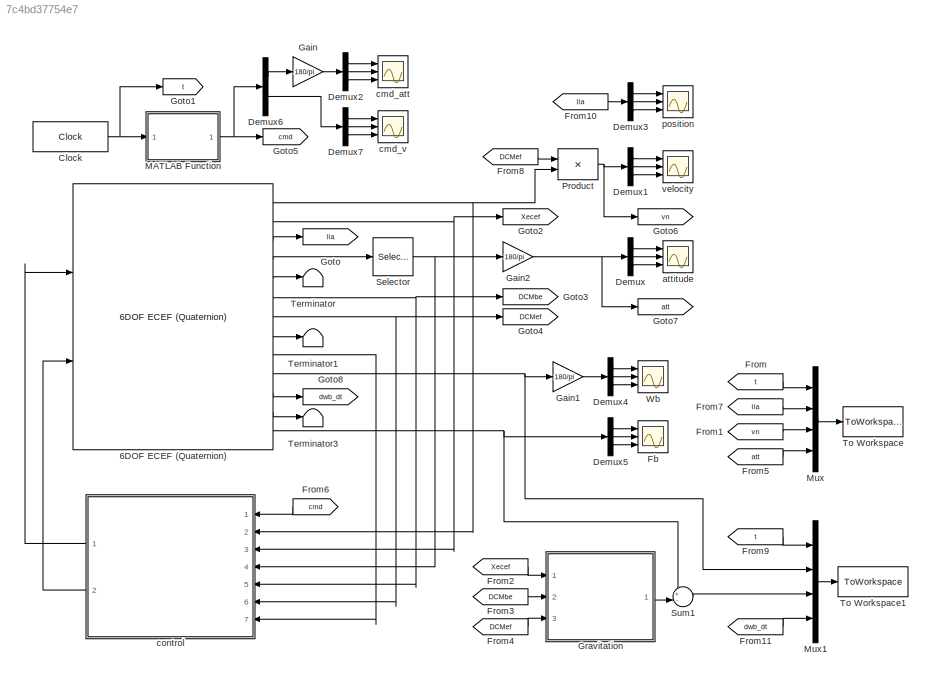
MODEL slx_7c4bd37754e7
KIND model
CONFIG AbsTol = auto
CONFIG EnableMultiTasking = off
CONFIG FixedStep = dt_solve
CONFIG InitFcn = traj_init_normal;
CONFIG MaxStep = auto
CONFIG MinStep = auto
CONFIG RelTol = 1e-3
CONFIG SampleTimeConstraint = Unconstrained
CONFIG Solver = ode4
CONFIG SolverName = ode4
CONFIG StartTime = 0.0
CONFIG StopTime = T
BLOCK [Reference] 6DOF ECEF (Quaternion)  REF=aerolib6dof2/6DOF ECEF (Quaternion)
  Ports = [2, 13]
  SourceBlock = aerolib6dof2/6DOF ECEF (Quaternion)
  SourceProductBaseCode = AE
  SourceProductName = Aerospace Blockset
  SourceType = 6DOF EoM (ECEF)
BLOCK [Clock] Clock
  Decimation = 1
  DisplayTime = on
BLOCK [Demux] Demux
  DisplayOption = bar
  Outputs = 3
  Ports = [1, 3]
BLOCK [Demux] Demux1
  DisplayOption = bar
  Outputs = 3
  Ports = [1, 3]
BLOCK [Demux] Demux2
  DisplayOption = bar
  Outputs = 3
  Ports = [1, 3]
BLOCK [Demux] Demux3
  DisplayOption = bar
  Outputs = 3
  Ports = [1, 3]
BLOCK [Demux] Demux4
  DisplayOption = bar
  Outputs = 3
  Ports = [1, 3]
BLOCK [Demux] Demux5
  DisplayOption = bar
  Outputs = 3
  Ports = [1, 3]
BLOCK [Demux] Demux6
  DisplayOption = bar
  Outputs = [3 3]
  Ports = [1, 2]
BLOCK [Demux] Demux7
  DisplayOption = bar
  Outputs = 3
  Ports = [1, 3]
BLOCK [Scope] Fb
  Floating = off
  NumInputPorts = 3
  Ports = [3]
  ScopeSpecificationString = Simulink.scopes.TimeScopeBlockCfg('CurrentConfiguration', extmgr.ConfigurationSet(extmgr.Configuration('Core','General UI',true),extmgr.Configuration('Core','Source UI',true),extmgr.Configuration('Sources','WiredSimulink',true,'DataLoggingVariableName','ScopeData2','SampleTime','dt_scope'),extmgr.Configuration('Visuals','Time Domain',true,'SerializedDisplays',{struct('MinYLimReal','0.0047','MaxYLi...<+2749ch>
BLOCK [From] From
  GotoTag = t
BLOCK [From] From1
  GotoTag = vn
BLOCK [From] From10
  GotoTag = lla
BLOCK [From] From11
  GotoTag = dwb_dt
BLOCK [From] From2
  GotoTag = Xecef
BLOCK [From] From3
  GotoTag = DCMbe
BLOCK [From] From4
  GotoTag = DCMef
BLOCK [From] From5
  GotoTag = att
BLOCK [From] From6
  GotoTag = cmd
BLOCK [From] From7
  GotoTag = lla
BLOCK [From] From8
  GotoTag = DCMef
BLOCK [From] From9
  GotoTag = t
BLOCK [Gain] Gain
  Gain = 180/pi
  OutDataTypeStr = Inherit: Inherit via internal rule
  ParamDataTypeStr = Inherit: Inherit via internal rule
  SaturateOnIntegerOverflow = off
BLOCK [Gain] Gain1
  Gain = 180/pi
  OutDataTypeStr = Inherit: Inherit via internal rule
  ParamDataTypeStr = Inherit: Inherit via internal rule
  SaturateOnIntegerOverflow = off
BLOCK [Gain] Gain2
  Gain = 180/pi
  OutDataTypeStr = Inherit: Inherit via internal rule
  ParamDataTypeStr = Inherit: Inherit via internal rule
  SaturateOnIntegerOverflow = off
BLOCK [Goto] Goto
  GotoTag = lla
BLOCK [Goto] Goto1
  GotoTag = t
BLOCK [Goto] Goto2
  GotoTag = Xecef
BLOCK [Goto] Goto3
  GotoTag = DCMbe
BLOCK [Goto] Goto4
  GotoTag = DCMef
BLOCK [Goto] Goto5
  GotoTag = cmd
BLOCK [Goto] Goto6
  GotoTag = vn
BLOCK [Goto] Goto7
  GotoTag = att
BLOCK [Goto] Goto8
  GotoTag = dwb_dt
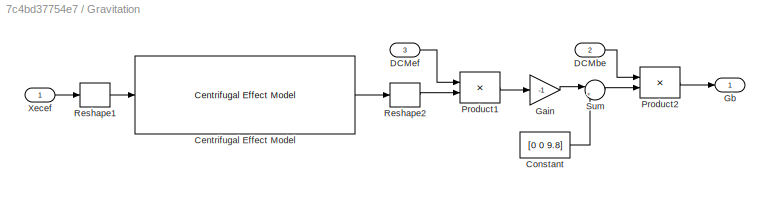
BLOCK [SubSystem] Gravitation
  Ports = [3, 1]
  RequestExecContextInheritance = off
BLOCK [Reference] Gravitation/Centrifugal Effect Model  REF=aerolibgravity2/Centrifugal Effect Model
  Ports = [1, 1]
  SourceBlock = aerolibgravity2/Centrifugal Effect Model
  SourceProductBaseCode = AE
  SourceProductName = Aerospace Blockset
  SourceType = Centrifugal Effect Model
BLOCK [Constant] Gravitation/Constant
  Value = [0 0 9.8]
BLOCK [Inport] Gravitation/DCMbe
  IconDisplay = Port number
  Port = 2
BLOCK [Inport] Gravitation/DCMef
  IconDisplay = Port number
  Port = 3
BLOCK [Gain] Gravitation/Gain
  Gain = -1
  OutDataTypeStr = Inherit: Inherit via internal rule
  ParamDataTypeStr = Inherit: Inherit via internal rule
  SaturateOnIntegerOverflow = off
BLOCK [Outport] Gravitation/Gb
  IconDisplay = Port number
BLOCK [Product] Gravitation/Product1
  InputSameDT = off
  Multiplication = Matrix(*)
  OutDataTypeStr = Inherit: Inherit via internal rule
  Ports = [2, 1]
  RndMeth = Floor
  SaturateOnIntegerOverflow = off
BLOCK [Product] Gravitation/Product2
  InputSameDT = off
  Multiplication = Matrix(*)
  OutDataTypeStr = Inherit: Inherit via internal rule
  Ports = [2, 1]
  RndMeth = Floor
  SaturateOnIntegerOverflow = off
BLOCK [Reshape] Gravitation/Reshape1
  Ports = [1, 1]
BLOCK [Reshape] Gravitation/Reshape2
  Ports = [1, 1]
BLOCK [Sum] Gravitation/Sum
  IconShape = round
  InputSameDT = off
  Inputs = |++
  OutDataTypeStr = Inherit: Inherit via internal rule
  Ports = [2, 1]
  SaturateOnIntegerOverflow = off
BLOCK [Inport] Gravitation/Xecef
  IconDisplay = Port number
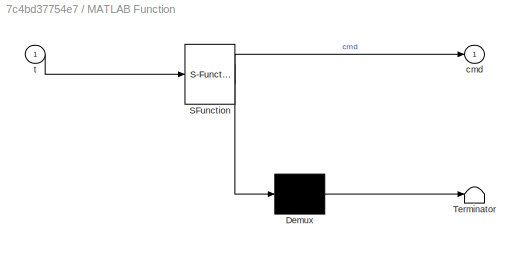
BLOCK [SubSystem] MATLAB Function
  ErrorFcn = Stateflow.Translate.translate
  PermitHierarchicalResolution = ExplicitOnly
  Ports = [1, 1]
  RequestExecContextInheritance = off
  SFBlockType = MATLAB Function
  TreatAsAtomicUnit = on
BLOCK [Demux] MATLAB Function/ Demux 
  Outputs = 1
  Ports = [1, 1]
BLOCK [S-Function] MATLAB Function/ SFunction 
  EnableBusSupport = on
  FunctionName = sf_sfun
  PortCounts = [1 2]
  Ports = [1, 2]
  SFcnIsStateOwnerBlock = off
  SFunctionDeploymentMode = off
  Tag = Stateflow S-Function traj_gene_normal 2
BLOCK [Terminator] MATLAB Function/ Terminator 
BLOCK [Outport] MATLAB Function/cmd
  IconDisplay = Port number
BLOCK [Inport] MATLAB Function/t
  IconDisplay = Port number
BLOCK [Mux] Mux
  DisplayOption = bar
  Ports = [4, 1]
BLOCK [Mux] Mux1
  DisplayOption = bar
  Ports = [4, 1]
BLOCK [Product] Product
  InputSameDT = off
  Multiplication = Matrix(*)
  OutDataTypeStr = Inherit: Inherit via internal rule
  Ports = [2, 1]
  RndMeth = Floor
  SaturateOnIntegerOverflow = off
BLOCK [Selector] Selector
  IndexOptions = Index vector (dialog)
  Indices = [3 2 1]
  InputPortWidth = 3
  OutputSizes = 1
  Ports = [1, 1]
BLOCK [Sum] Sum1
  IconShape = round
  InputSameDT = off
  Inputs = +-|
  OutDataTypeStr = Inherit: Inherit via internal rule
  Ports = [2, 1]
  SaturateOnIntegerOverflow = off
BLOCK [Terminator] Terminator
BLOCK [Terminator] Terminator1
BLOCK [Terminator] Terminator3
BLOCK [ToWorkspace] To Workspace
  Decimation = dt_traj/dt_solve
  FixptAsFi = on
  MaxDataPoints = inf
  Ports = [1]
  SampleTime = -1
  Save2DSignal = 3-D array (concatenate along third dimension)
  VariableName = traj_m
BLOCK [ToWorkspace] To Workspace1
  Decimation = dt_imu_rate/dt_solve
  FixptAsFi = on
  MaxDataPoints = inf
  Ports = [1]
  SampleTime = -1
  Save2DSignal = 3-D array (concatenate along third dimension)
  VariableName = imu_rate
BLOCK [Scope] Wb
  Floating = off
  NumInputPorts = 3
  Ports = [3]
  ScopeSpecificationString = Simulink.scopes.TimeScopeBlockCfg('CurrentConfiguration', extmgr.ConfigurationSet(extmgr.Configuration('Core','General UI',true),extmgr.Configuration('Core','Source UI',true),extmgr.Configuration('Sources','WiredSimulink',true,'DataLoggingVariableName','ScopeData4','SampleTime','dt_scope'),extmgr.Configuration('Visuals','Time Domain',true,'SerializedDisplays',{struct('MinYLimReal','0.00262','MaxYL...<+2755ch>
BLOCK [Scope] attitude
  Floating = off
  NumInputPorts = 3
  Ports = [3]
  ScopeSpecificationString = Simulink.scopes.TimeScopeBlockCfg('CurrentConfiguration', extmgr.ConfigurationSet(extmgr.Configuration('Core','General UI',true),extmgr.Configuration('Core','Source UI',true),extmgr.Configuration('Sources','WiredSimulink',true,'SampleTime','dt_scope'),extmgr.Configuration('Visuals','Time Domain',true,'SerializedDisplays',{struct('MinYLimReal','0.000000000000009','MaxYLimReal','0.000000000000029','...<+2763ch>
BLOCK [Scope] cmd_att
  Floating = off
  NumInputPorts = 3
  Ports = [3]
  ScopeSpecificationString = Simulink.scopes.TimeScopeBlockCfg('CurrentConfiguration', extmgr.ConfigurationSet(extmgr.Configuration('Core','General UI',true),extmgr.Configuration('Core','Source UI',true),extmgr.Configuration('Sources','WiredSimulink',true,'DataLoggingVariableName','ScopeData1','SampleTime','dt_scope'),extmgr.Configuration('Visuals','Time Domain',true,'SerializedDisplays',{struct('MinYLimReal','-1.00000','MaxY...<+2721ch>
BLOCK [Scope] cmd_v
  Floating = off
  NumInputPorts = 3
  Ports = [3]
  ScopeSpecificationString = Simulink.scopes.TimeScopeBlockCfg('CurrentConfiguration', extmgr.ConfigurationSet(extmgr.Configuration('Core','General UI',true),extmgr.Configuration('Core','Source UI',true),extmgr.Configuration('Sources','WiredSimulink',true,'DataLoggingVariableName','ScopeData2','SampleTime','dt_scope'),extmgr.Configuration('Visuals','Time Domain',true,'SerializedDisplays',{struct('MinYLimReal','-1.00000','MaxY...<+2721ch>
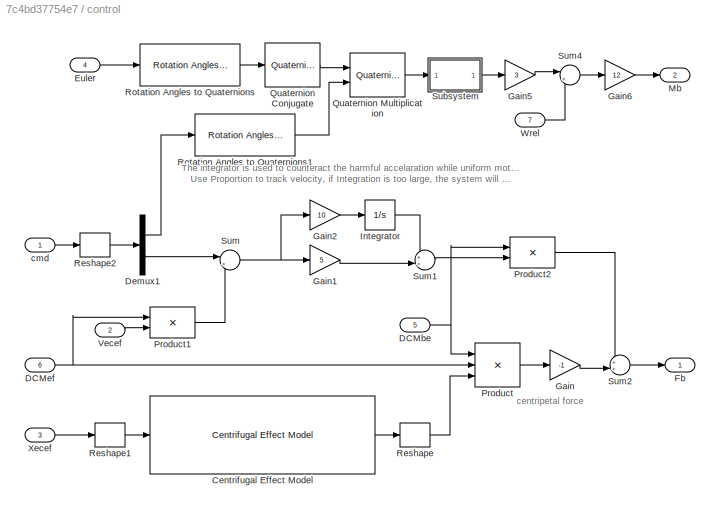
BLOCK [SubSystem] control
  Ports = [7, 2]
  RequestExecContextInheritance = off
BLOCK [Reference] control/Centrifugal Effect Model  REF=aerolibgravity2/Centrifugal Effect Model
  Ports = [1, 1]
  SourceBlock = aerolibgravity2/Centrifugal Effect Model
  SourceProductBaseCode = AE
  SourceProductName = Aerospace Blockset
  SourceType = Centrifugal Effect Model
BLOCK [Inport] control/DCMbe
  IconDisplay = Port number
  Port = 5
BLOCK [Inport] control/DCMef
  IconDisplay = Port number
  Port = 6
BLOCK [Demux] control/Demux1
  DisplayOption = bar
  Outputs = [3 3]
  Ports = [1, 2]
BLOCK [Inport] control/Euler
  IconDisplay = Port number
  Port = 4
BLOCK [Outport] control/Fb
  IconDisplay = Port number
BLOCK [Gain] control/Gain
  Gain = -1
  OutDataTypeStr = Inherit: Inherit via internal rule
  ParamDataTypeStr = Inherit: Inherit via internal rule
  SaturateOnIntegerOverflow = off
BLOCK [Gain] control/Gain1
  Gain = 5
  OutDataTypeStr = Inherit: Inherit via internal rule
  ParamDataTypeStr = Inherit: Inherit via internal rule
  SaturateOnIntegerOverflow = off
BLOCK [Gain] control/Gain2
  Gain = 10
  OutDataTypeStr = Inherit: Inherit via internal rule
  ParamDataTypeStr = Inherit: Inherit via internal rule
  SaturateOnIntegerOverflow = off
BLOCK [Gain] control/Gain5
  Gain = 3
  OutDataTypeStr = Inherit: Inherit via internal rule
  ParamDataTypeStr = Inherit: Inherit via internal rule
  SaturateOnIntegerOverflow = off
BLOCK [Gain] control/Gain6
  Gain = 12
  OutDataTypeStr = Inherit: Inherit via internal rule
  ParamDataTypeStr = Inherit: Inherit via internal rule
  SaturateOnIntegerOverflow = off
BLOCK [Integrator] control/Integrator
  InitialCondition = f_harmful
  LimitOutput = on
  LowerSaturationLimit = -0.2
  Ports = [1, 1]
  UpperSaturationLimit = 0.2
BLOCK [Outport] control/Mb
  IconDisplay = Port number
  Port = 2
BLOCK [Product] control/Product
  InputSameDT = off
  Inputs = 3
  Multiplication = Matrix(*)
  OutDataTypeStr = Inherit: Inherit via internal rule
  Ports = [3, 1]
  RndMeth = Floor
  SaturateOnIntegerOverflow = off
BLOCK [Product] control/Product1
  InputSameDT = off
  Multiplication = Matrix(*)
  OutDataTypeStr = Inherit: Inherit via internal rule
  Ports = [2, 1]
  RndMeth = Floor
  SaturateOnIntegerOverflow = off
BLOCK [Product] control/Product2
  InputSameDT = off
  Multiplication = Matrix(*)
  OutDataTypeStr = Inherit: Inherit via internal rule
  Ports = [2, 1]
  RndMeth = Floor
  SaturateOnIntegerOverflow = off
BLOCK [Reference] control/Quaternion Conjugate  REF=aerolibutil/Quaternion
Conjugate
  Ports = [1, 1]
  SourceBlock = aerolibutil/Quaternion\nConjugate
  SourceProductBaseCode = AE
  SourceProductName = Aerospace Blockset
  SourceType = Quaternion Conjugate
BLOCK [Reference] control/Quaternion Multiplication  REF=aerolibutil/Quaternion
Multiplication
  Ports = [2, 1]
  SourceBlock = aerolibutil/Quaternion\nMultiplication
  SourceProductBaseCode = AE
  SourceProductName = Aerospace Blockset
  SourceType = Quaternion Multiplication
BLOCK [Reshape] control/Reshape
  Ports = [1, 1]
BLOCK [Reshape] control/Reshape1
  Ports = [1, 1]
BLOCK [Reshape] control/Reshape2
  Ports = [1, 1]
BLOCK [Reference] control/Rotation Angles to Quaternions  REF=sharedtransform/Rotation Angles to Quaternions
  AttributesFormatString = Rotation Order: %<rotationOrder>
  Ports = [1, 1]
  SourceBlock = sharedtransform/Rotation Angles to Quaternions
  SourceProductBaseCode = AE
  SourceProductName = Aerospace Blockset
  SourceType = Ang2Quat
BLOCK [Reference] control/Rotation Angles to Quaternions1  REF=sharedtransform/Rotation Angles to Quaternions
  AttributesFormatString = Rotation Order: %<rotationOrder>
  Ports = [1, 1]
  SourceBlock = sharedtransform/Rotation Angles to Quaternions
  SourceProductBaseCode = AE
  SourceProductName = Aerospace Blockset
  SourceType = Ang2Quat
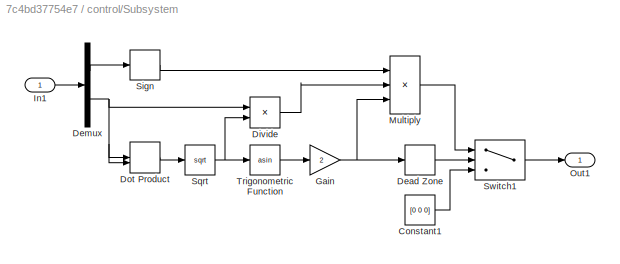
BLOCK [SubSystem] control/Subsystem
  Ports = [1, 1]
  RequestExecContextInheritance = off
BLOCK [Constant] control/Subsystem/Constant1
  Value = [0 0 0]
BLOCK [DeadZone] control/Subsystem/Dead Zone
  LowerValue = -1e-12
  UpperValue = 1e-12
BLOCK [Demux] control/Subsystem/Demux
  DisplayOption = bar
  Outputs = [1 3]
  Ports = [1, 2]
BLOCK [Product] control/Subsystem/Divide
  InputSameDT = off
  Inputs = */
  OutDataTypeStr = Inherit: Inherit via internal rule
  Ports = [2, 1]
  RndMeth = Floor
  SaturateOnIntegerOverflow = off
BLOCK [DotProduct] control/Subsystem/Dot Product
  OutDataTypeStr = Inherit: Inherit via internal rule
BLOCK [Gain] control/Subsystem/Gain
  Gain = 2
  OutDataTypeStr = Inherit: Inherit via internal rule
  ParamDataTypeStr = Inherit: Inherit via internal rule
  SaturateOnIntegerOverflow = off
BLOCK [Inport] control/Subsystem/In1
  IconDisplay = Port number
BLOCK [Product] control/Subsystem/Multiply
  InputSameDT = off
  Inputs = 3
  OutDataTypeStr = Inherit: Inherit via internal rule
  Ports = [3, 1]
  RndMeth = Floor
  SaturateOnIntegerOverflow = off
BLOCK [Outport] control/Subsystem/Out1
  IconDisplay = Port number
BLOCK [Signum] control/Subsystem/Sign
BLOCK [Sqrt] control/Subsystem/Sqrt
BLOCK [Switch] control/Subsystem/Switch1
  Criteria = u2 ~= 0
  InputSameDT = off
  SaturateOnIntegerOverflow = off
BLOCK [Trigonometry] control/Subsystem/Trigonometric Function
  Operator = asin
  Ports = [1, 1]
BLOCK [Sum] control/Sum
  IconShape = round
  InputSameDT = off
  Inputs = |+-
  OutDataTypeStr = Inherit: Inherit via internal rule
  Ports = [2, 1]
  SaturateOnIntegerOverflow = off
BLOCK [Sum] control/Sum1
  IconShape = round
  InputSameDT = off
  Inputs = ++|
  OutDataTypeStr = Inherit: Inherit via internal rule
  Ports = [2, 1]
  SaturateOnIntegerOverflow = off
BLOCK [Sum] control/Sum2
  IconShape = round
  InputSameDT = off
  Inputs = ++|
  OutDataTypeStr = Inherit: Inherit via internal rule
  Ports = [2, 1]
  SaturateOnIntegerOverflow = off
BLOCK [Sum] control/Sum4
  IconShape = round
  InputSameDT = off
  Inputs = |+-
  OutDataTypeStr = Inherit: Inherit via internal rule
  Ports = [2, 1]
  SaturateOnIntegerOverflow = off
BLOCK [Inport] control/Vecef
  IconDisplay = Port number
  Port = 2
BLOCK [Inport] control/Wrel
  IconDisplay = Port number
  Port = 7
BLOCK [Inport] control/Xecef
  IconDisplay = Port number
  Port = 3
BLOCK [Inport] control/cmd
  IconDisplay = Port number
BLOCK [Scope] position
  Floating = off
  NumInputPorts = 3
  Ports = [3]
  ScopeSpecificationString = Simulink.scopes.TimeScopeBlockCfg('CurrentConfiguration', extmgr.ConfigurationSet(extmgr.Configuration('Core','General UI',true),extmgr.Configuration('Core','Source UI',true),extmgr.Configuration('Sources','WiredSimulink',true,'DataLoggingVariableName','ScopeData2','SampleTime','dt_scope'),extmgr.Configuration('Visuals','Time Domain',true,'SerializedDisplays',{struct('MinYLimReal','20.00000','MaxY...<+2729ch>
BLOCK [Scope] velocity
  Floating = off
  NumInputPorts = 3
  Ports = [3]
  ScopeSpecificationString = Simulink.scopes.TimeScopeBlockCfg('CurrentConfiguration', extmgr.ConfigurationSet(extmgr.Configuration('Core','General UI',true),extmgr.Configuration('Core','Source UI',true),extmgr.Configuration('Sources','WiredSimulink',true,'DataLoggingVariableName','ScopeData1','SampleTime','dt_scope'),extmgr.Configuration('Visuals','Time Domain',true,'SerializedDisplays',{struct('MinYLimReal','-1.00000','MaxY...<+2721ch>
ANNOTATION control: The integrator is used to counteract the harmful accelaration while uniform motion. Use Proportion to track velocity, if Integration is too large, the system will overshoot.
ANNOTATION control: centripetal force
NET 6DOF ECEF (Quaternion):1 -> Product:2, control:2
NET 6DOF ECEF (Quaternion):10 -> Gain1:1, Mux1:2
LINE 6DOF ECEF (Quaternion):11 -> Goto8:1
LINE 6DOF ECEF (Quaternion):12 -> Terminator3:1
NET 6DOF ECEF (Quaternion):13 -> Demux5:1, Sum1:1
NET 6DOF ECEF (Quaternion):2 -> Goto2:1, control:3
LINE 6DOF ECEF (Quaternion):3 -> Goto:1
LINE 6DOF ECEF (Quaternion):4 -> Selector:1
LINE 6DOF ECEF (Quaternion):5 -> Terminator:1
NET 6DOF ECEF (Quaternion):6 -> Goto3:1, control:5
NET 6DOF ECEF (Quaternion):7 -> Goto4:1, control:6
LINE 6DOF ECEF (Quaternion):8 -> Terminator1:1
LINE 6DOF ECEF (Quaternion):9 -> control:7
NET Clock:1 -> Goto1:1, MATLAB Function:1
LINE Demux1:1 -> velocity:1
LINE Demux1:2 -> velocity:2
LINE Demux1:3 -> velocity:3
LINE Demux2:1 -> cmd_att:1
LINE Demux2:2 -> cmd_att:2
LINE Demux2:3 -> cmd_att:3
LINE Demux3:1 -> position:1
LINE Demux3:2 -> position:2
LINE Demux3:3 -> position:3
LINE Demux4:1 -> Wb:1
LINE Demux4:2 -> Wb:2
LINE Demux4:3 -> Wb:3
LINE Demux5:1 -> Fb:1
LINE Demux5:2 -> Fb:2
LINE Demux5:3 -> Fb:3
LINE Demux6:1 -> Gain:1
LINE Demux6:2 -> Demux7:1
LINE Demux7:1 -> cmd_v:1
LINE Demux7:2 -> cmd_v:2
LINE Demux7:3 -> cmd_v:3
LINE Demux:1 -> attitude:1
LINE Demux:2 -> attitude:2
LINE Demux:3 -> attitude:3
LINE From10:1 -> Demux3:1
LINE From11:1 -> Mux1:4
LINE From1:1 -> Mux:3
LINE From2:1 -> Gravitation:1
LINE From3:1 -> Gravitation:2
LINE From4:1 -> Gravitation:3
LINE From5:1 -> Mux:4
LINE From6:1 -> control:1
LINE From7:1 -> Mux:2
LINE From8:1 -> Product:1
LINE From9:1 -> Mux1:1
LINE From:1 -> Mux:1
LINE Gain1:1 -> Demux4:1
NET Gain2:1 -> Demux:1, Goto7:1
LINE Gain:1 -> Demux2:1
LINE Gravitation/Centrifugal Effect Model:1 -> Gravitation/Reshape2:1
LINE Gravitation/Constant:1 -> Gravitation/Sum:2
LINE Gravitation/DCMbe:1 -> Gravitation/Product2:1
LINE Gravitation/DCMef:1 -> Gravitation/Product1:1
LINE Gravitation/Gain:1 -> Gravitation/Sum:1
LINE Gravitation/Product1:1 -> Gravitation/Gain:1
LINE Gravitation/Product2:1 -> Gravitation/Gb:1
LINE Gravitation/Reshape1:1 -> Gravitation/Centrifugal Effect Model:1
LINE Gravitation/Reshape2:1 -> Gravitation/Product1:2
LINE Gravitation/Sum:1 -> Gravitation/Product2:2
LINE Gravitation/Xecef:1 -> Gravitation/Reshape1:1
LINE Gravitation:1 -> Sum1:2
NET MATLAB Function:1 -> Demux6:1, Goto5:1
LINE Mux1:1 -> To Workspace1:1
LINE Mux:1 -> To Workspace:1
NET Product:1 -> Demux1:1, Goto6:1
NET Selector:1 -> Gain2:1, control:4
LINE Sum1:1 -> Mux1:3
LINE control/Centrifugal Effect Model:1 -> control/Reshape:1
NET control/DCMbe:1 -> control/Product2:1, control/Product:1
NET control/DCMef:1 -> control/Product1:1, control/Product:2
LINE control/Demux1:1 -> control/Rotation Angles to Quaternions1:1
LINE control/Demux1:2 -> control/Sum:1
LINE control/Euler:1 -> control/Rotation Angles to Quaternions:1
LINE control/Gain1:1 -> control/Sum1:2
LINE control/Gain2:1 -> control/Integrator:1
LINE control/Gain5:1 -> control/Sum4:1
LINE control/Gain6:1 -> control/Mb:1
LINE control/Gain:1 -> control/Sum2:2
LINE control/Integrator:1 -> control/Sum1:1
LINE control/Product1:1 -> control/Sum:2
LINE control/Product2:1 -> control/Sum2:1
LINE control/Product:1 -> control/Gain:1
LINE control/Quaternion Conjugate:1 -> control/Quaternion Multiplication:1
LINE control/Quaternion Multiplication:1 -> control/Subsystem:1
LINE control/Reshape1:1 -> control/Centrifugal Effect Model:1
LINE control/Reshape2:1 -> control/Demux1:1
LINE control/Reshape:1 -> control/Product:3
LINE control/Rotation Angles to Quaternions1:1 -> control/Quaternion Multiplication:2
LINE control/Rotation Angles to Quaternions:1 -> control/Quaternion Conjugate:1
LINE control/Subsystem/Constant1:1 -> control/Subsystem/Switch1:3
LINE control/Subsystem/Dead Zone:1 -> control/Subsystem/Switch1:2
LINE control/Subsystem/Demux:1 -> control/Subsystem/Sign:1
NET control/Subsystem/Demux:2 -> control/Subsystem/Divide:1, control/Subsystem/Dot Product:1, control/Subsystem/Dot Product:2
LINE control/Subsystem/Divide:1 -> control/Subsystem/Multiply:2
LINE control/Subsystem/Dot Product:1 -> control/Subsystem/Sqrt:1
NET control/Subsystem/Gain:1 -> control/Subsystem/Dead Zone:1, control/Subsystem/Multiply:3
LINE control/Subsystem/In1:1 -> control/Subsystem/Demux:1
LINE control/Subsystem/Multiply:1 -> control/Subsystem/Switch1:1
LINE control/Subsystem/Sign:1 -> control/Subsystem/Multiply:1
NET control/Subsystem/Sqrt:1 -> control/Subsystem/Divide:2, control/Subsystem/Trigonometric Function:1
LINE control/Subsystem/Switch1:1 -> control/Subsystem/Out1:1
LINE control/Subsystem/Trigonometric Function:1 -> control/Subsystem/Gain:1
LINE control/Subsystem:1 -> control/Gain5:1
LINE control/Sum1:1 -> control/Product2:2
LINE control/Sum2:1 -> control/Fb:1
LINE control/Sum4:1 -> control/Gain6:1
NET control/Sum:1 -> control/Gain1:1, control/Gain2:1
LINE control/Vecef:1 -> control/Product1:2
LINE control/Wrel:1 -> control/Sum4:2
LINE control/Xecef:1 -> control/Reshape1:1
LINE control/cmd:1 -> control/Reshape2:1
LINE control:1 -> 6DOF ECEF (Quaternion):1
LINE control:2 -> 6DOF ECEF (Quaternion):2
note: NET lines group one-source signal fan-out (src -> all destinations, sorted); 1:1 wires keep LINE
CHART MATLAB Function states=1 transitions=1
  STATE_LABEL 'eML_blk_kernel()'
  STATE_LABEL 'SCRIPT:\nfunction cmd = fcn(t)\n\ncmd = traj_design(t);\n\nend'
